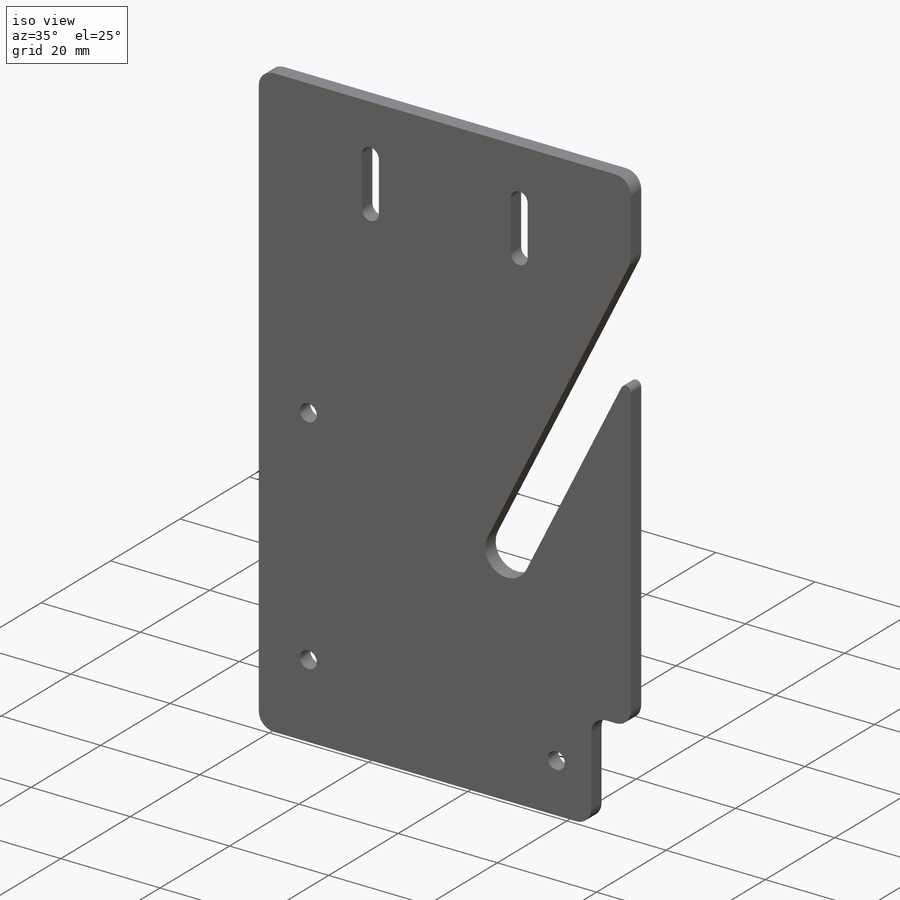
[diagram: iso view]
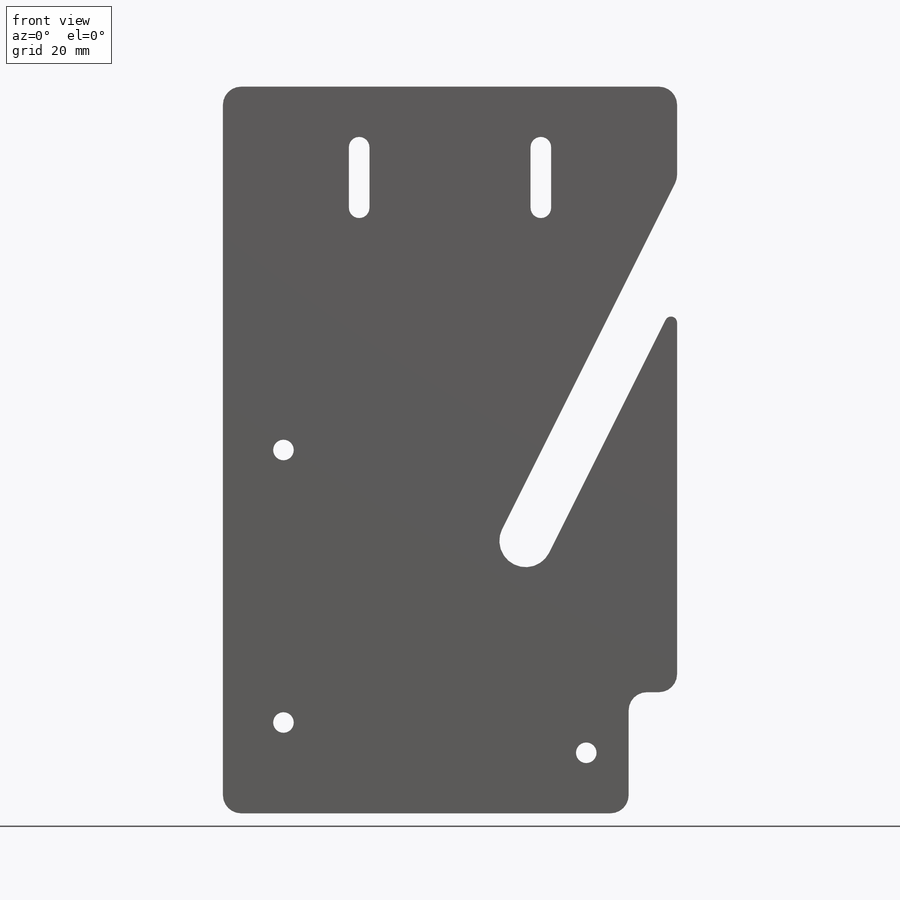
[diagram: front view]
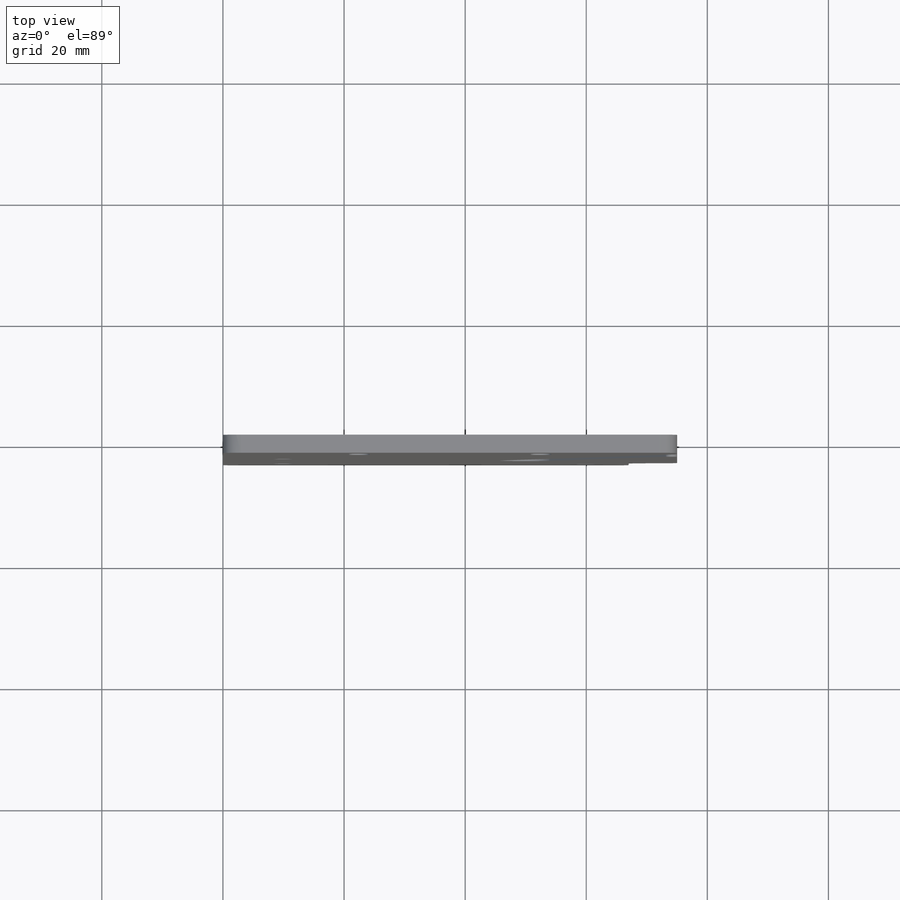
[diagram: top view]
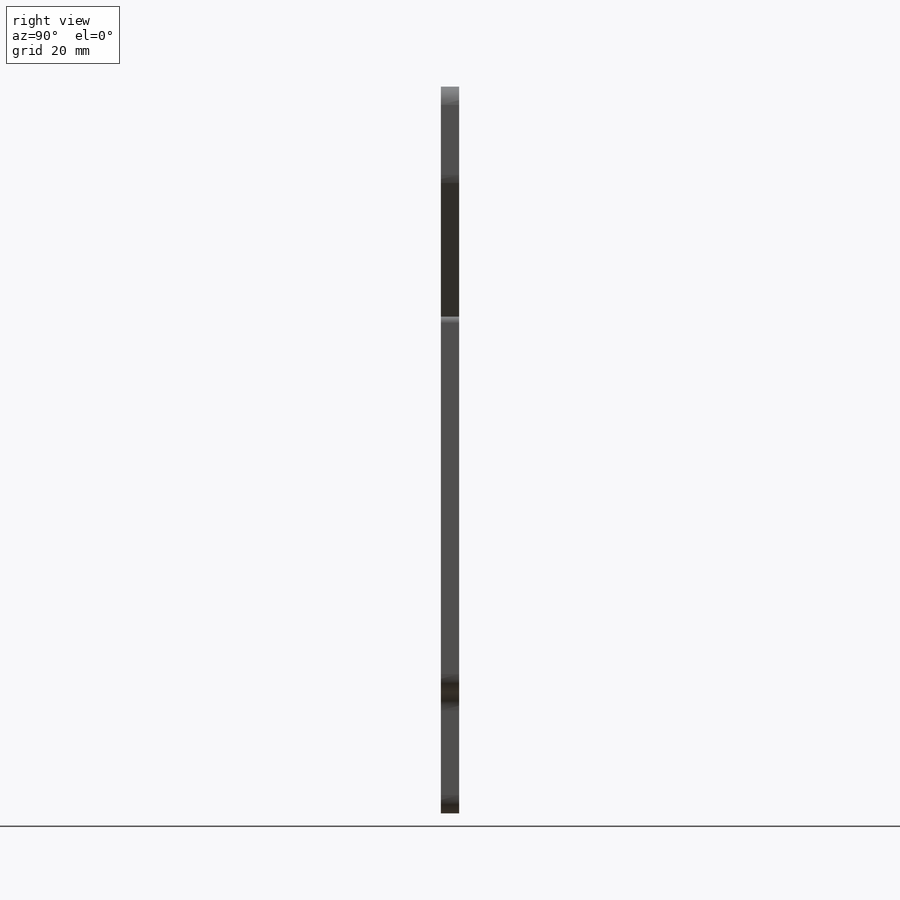
[diagram: right view]
SOLIDWORKS PART (.sldprt)
format: sldprt  version: not decoded by parser v0  size: 237,056 bytes
history: native  units: mm
features: sketch x3, fillet x3, cut_extrude x2, material x1, extrude x1 (+11 scaffold rows collapsed)
feature tree (21):
  scaffold x11  (default folders/planes/origin — collapsed)
  material  "Acrylic (Medium-high impact)"
  sketch  "Sketch1"  dims[c1.D4=8.7mm c1.D6=8.5mm c1.D8=3.4mm c1.D9=3.4mm c1.D10=3.4mm c1.D11=3.4mm c1.D16=8.7mm c1.D19=8.5mm c2.D6=3.4mm c2.D1=120.0mm c2.D2=75.0mm c2.D3=50.0mm c2.D5=45.0mm c2.D7=50.0mm c2.D12=15.0mm c2.D13=10.0mm c2.D14=10.0mm c2.D15=45.0mm c2.D17=10.0mm c2.D18=20.0mm c2.D20=5.5mm c2.D21=9.0mm c3.D7=10.0mm c3.D10=15.0mm]
  extrude  "Boss-Extrude1"  Depth=3mm
  fillet  "Fillet1"  Radius=3mm
  sketch  "Sketch2"  dims[D3=3.4mm D4=3.4mm D1=30.0mm D2=110.0mm D5=10.0mm D6=10.0mm]
  cut_extrude  "Cut-Extrude1"  [1 undecoded]
  sketch  "Sketch3"  dims[D1=8.0mm D2=20.0mm]
  cut_extrude  "Cut-Extrude2"  [1 undecoded]
  fillet  "Fillet2"  Radius=3mm
  fillet  "Fillet3"  Radius=1mm
decode coverage: 7 of 9 modeling features carry decoded parameters
note: 2 parameter values undecoded
note: suppression state not decoded; provenance and decode notes live in map.json
